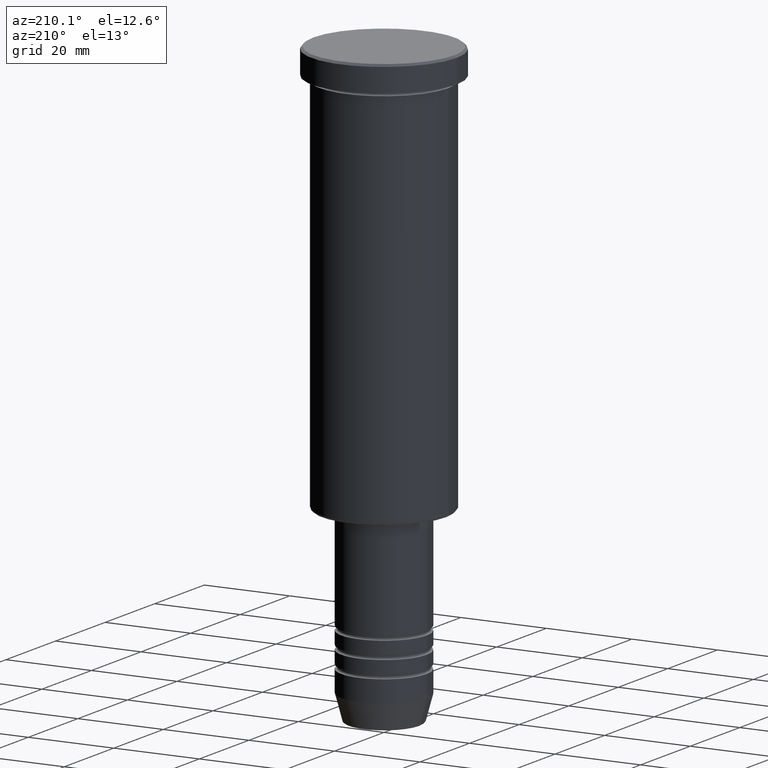
[diagram: clean part render]
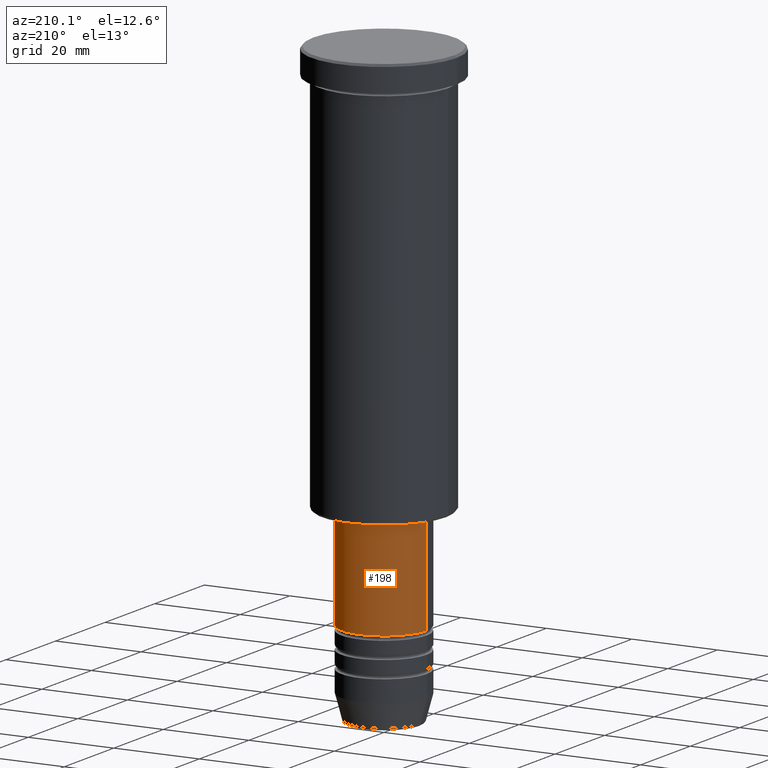
[diagram: same view with one face highlighted and labeled with its STEP entity id]
A machine part, auxiliary view. The second image highlights one B-rep face of the part: STEP entity #198.
In plain terms, the highlighted cylindrical surface (partial cylindrical patch) has radius 10 mm, axis along (-0, -0, 1).
Its self-contained STEP definition (entity closure, byte-faithful):
#25 = VECTOR ( 'NONE', #511, 1000.000000000000000 ) ;
#66 = AXIS2_PLACEMENT_3D ( 'NONE', #386, #582, #770 ) ;
#72 = DIRECTION ( 'NONE',  ( 1.000000000000000000, 0.000000000000000000, 0.000000000000000000 ) ) ;
#178 = CARTESIAN_POINT ( 'NONE',  ( -10.00000000000000178, 1.224646799147353454E-15, -120.0000000000000000 ) ) ;
#179 = VERTEX_POINT ( 'NONE', #757 ) ;
#198 = ADVANCED_FACE ( 'NONE', ( #261 ), #912, .T. ) ;
#219 = VECTOR ( 'NONE', #849, 1000.000000000000000 ) ;
#229 = DIRECTION ( 'NONE',  ( -0.000000000000000000, -0.000000000000000000, 1.000000000000000000 ) ) ;
#232 = VERTEX_POINT ( 'NONE', #178 ) ;
#261 = FACE_OUTER_BOUND ( 'NONE', #826, .T. ) ;
#273 = CARTESIAN_POINT ( 'NONE',  ( 0.000000000000000000, 0.000000000000000000, 0.000000000000000000 ) ) ;
#284 = CARTESIAN_POINT ( 'NONE',  ( 10.00000000000000178, 0.000000000000000000, -120.0000000000000000 ) ) ;
#386 = CARTESIAN_POINT ( 'NONE',  ( 0.000000000000000000, 0.000000000000000000, -97.00000000000002842 ) ) ;
#445 = AXIS2_PLACEMENT_3D ( 'NONE', #1127, #229, #763 ) ;
#491 = ORIENTED_EDGE ( 'NONE', *, *, #1015, .F. ) ;
#511 = DIRECTION ( 'NONE',  ( -0.000000000000000000, -0.000000000000000000, 1.000000000000000000 ) ) ;
#582 = DIRECTION ( 'NONE',  ( -0.000000000000000000, -0.000000000000000000, 1.000000000000000000 ) ) ;
#583 = CIRCLE ( 'NONE', #66, 9.999999999999998224 ) ;
#673 = CARTESIAN_POINT ( 'NONE',  ( 10.00000000000000000, 0.000000000000000000, 0.000000000000000000 ) ) ;
#675 = AXIS2_PLACEMENT_3D ( 'NONE', #273, #806, #72 ) ;
#686 = LINE ( 'NONE', #673, #25 ) ;
#757 = CARTESIAN_POINT ( 'NONE',  ( 9.999999999999998224, 0.000000000000000000, -97.00000000000002842 ) ) ;
#763 = DIRECTION ( 'NONE',  ( 1.000000000000000000, 0.000000000000000000, 0.000000000000000000 ) ) ;
#770 = DIRECTION ( 'NONE',  ( 1.000000000000000000, 0.000000000000000000, 0.000000000000000000 ) ) ;
#806 = DIRECTION ( 'NONE',  ( -0.000000000000000000, -0.000000000000000000, 1.000000000000000000 ) ) ;
#826 = EDGE_LOOP ( 'NONE', ( #985, #1171, #938, #491 ) ) ;
#849 = DIRECTION ( 'NONE',  ( -0.000000000000000000, -0.000000000000000000, 1.000000000000000000 ) ) ;
#892 = VERTEX_POINT ( 'NONE', #926 ) ;
#912 = CYLINDRICAL_SURFACE ( 'NONE', #675, 10.00000000000000000 ) ;
#926 = CARTESIAN_POINT ( 'NONE',  ( -9.999999999999998224, 1.224646799147353256E-15, -97.00000000000002842 ) ) ;
#938 = ORIENTED_EDGE ( 'NONE', *, *, #1094, .F. ) ;
#952 = CARTESIAN_POINT ( 'NONE',  ( -10.00000000000000000, 1.224646799147353256E-15, 0.000000000000000000 ) ) ;
#967 = VERTEX_POINT ( 'NONE', #284 ) ;
#985 = ORIENTED_EDGE ( 'NONE', *, *, #1058, .T. ) ;
#1015 = EDGE_CURVE ( 'NONE', #967, #179, #686, .T. ) ;
#1058 = EDGE_CURVE ( 'NONE', #967, #232, #1087, .T. ) ;
#1087 = CIRCLE ( 'NONE', #445, 10.00000000000000178 ) ;
#1094 = EDGE_CURVE ( 'NONE', #179, #892, #583, .T. ) ;
#1099 = EDGE_CURVE ( 'NONE', #232, #892, #1116, .T. ) ;
#1116 = LINE ( 'NONE', #952, #219 ) ;
#1127 = CARTESIAN_POINT ( 'NONE',  ( 0.000000000000000000, 0.000000000000000000, -120.0000000000000000 ) ) ;
#1171 = ORIENTED_EDGE ( 'NONE', *, *, #1099, .T. ) ;